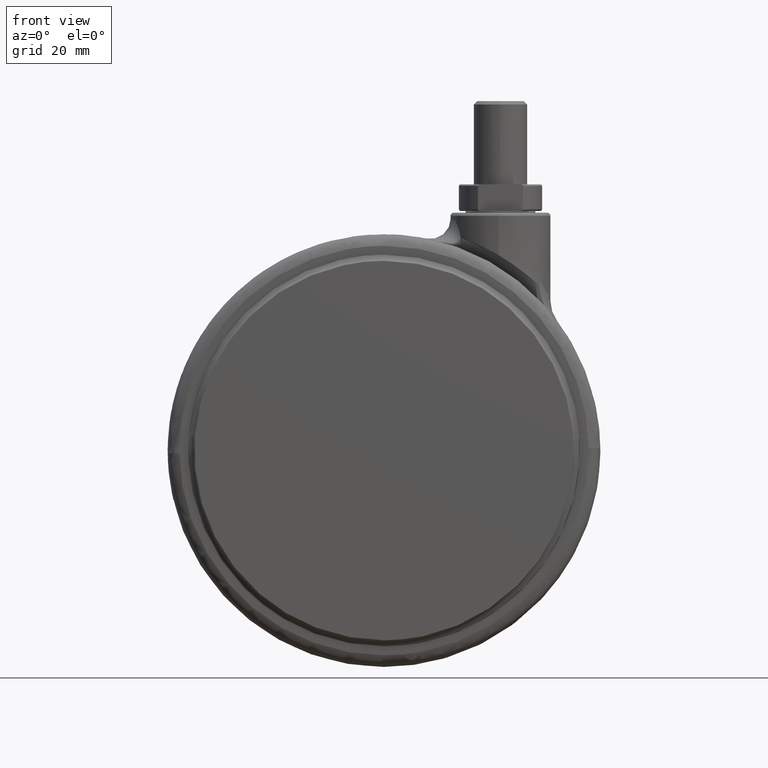
[diagram: clean part render]
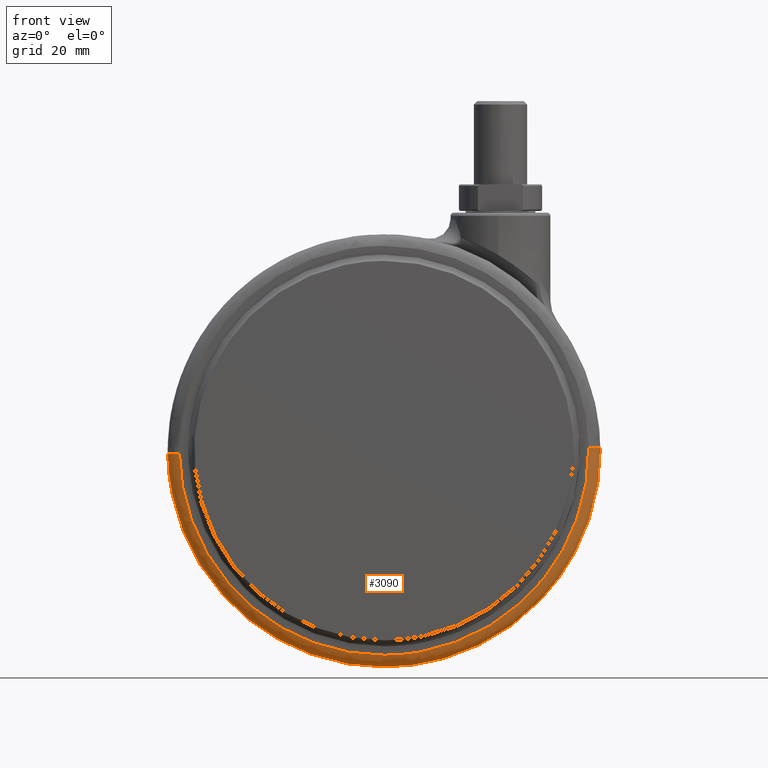
[diagram: same view with one face highlighted and labeled with its STEP entity id]
A machine part, front view. The second image highlights one B-rep face of the part: STEP entity #3090.
In plain terms, the highlighted face is a freeform B-spline surface patch.
Its self-contained STEP definition (entity closure, byte-faithful):
#2750=CARTESIAN_POINT('',(29.994867873247919,-19.500000000344311,-70.683207407572880));
#2751=VERTEX_POINT('',#2750);
#2765=CARTESIAN_POINT('',(12.149334334185131,-19.500000000176971,-116.243047189962700));
#2766=VERTEX_POINT('',#2765);
#2767=CARTESIAN_POINT('',(29.994867873247916,-19.500000000344311,-70.683207407572880));
#2768=CARTESIAN_POINT('',(29.999999999999989,-19.500000000343245,-71.091587580522571));
#2769=CARTESIAN_POINT('',(29.999999999999989,-19.500000000342158,-71.500000000000014));
#2770=CARTESIAN_POINT('',(29.999999999999989,-19.500000000273481,-97.432370304413638));
#2771=CARTESIAN_POINT('',(12.149334334185109,-19.500000000176968,-116.243047189962710));
#2779=(BOUNDED_CURVE()B_SPLINE_CURVE(2,(#2767,#2768,#2769,#2770,#2771),.UNSPECIFIED.,.F.,.U.)B_SPLINE_CURVE_WITH_KNOTS((3,2,3),(0.247784295921703,0.250000000000000,0.371049525922478),.UNSPECIFIED.)CURVE()GEOMETRIC_REPRESENTATION_ITEM()RATIONAL_B_SPLINE_CURVE((0.994854295643955,0.997404141202278,1.0,0.858181658866892,0.853699661423984))REPRESENTATION_ITEM(''));
#2780=EDGE_CURVE('',#2751,#2766,#2779,.T.);
#2816=CARTESIAN_POINT('',(-99.994867873247927,-19.500000000344311,-72.316792592427120));
#2817=VERTEX_POINT('',#2816);
#2838=CARTESIAN_POINT('',(-35.0,-19.500000000000000,-136.500000000000000));
#2839=VERTEX_POINT('',#2838);
#2840=CARTESIAN_POINT('',(12.149334334185109,-19.500000000176968,-116.243047189962710));
#2841=CARTESIAN_POINT('',(-7.073795924245713,-19.500000000073044,-136.500000000000030));
#2842=CARTESIAN_POINT('',(-35.0,-19.500000000000000,-136.500000000000000));
#2850=(BOUNDED_CURVE()B_SPLINE_CURVE(2,(#2840,#2841,#2842),.UNSPECIFIED.,.F.,.U.)B_SPLINE_CURVE_WITH_KNOTS((3,3),(0.371049525922478,0.500000000000000),.UNSPECIFIED.)CURVE()GEOMETRIC_REPRESENTATION_ITEM()RATIONAL_B_SPLINE_CURVE((0.853699661423984,0.848925122319655,1.0))REPRESENTATION_ITEM(''));
#2851=EDGE_CURVE('',#2766,#2839,#2850,.T.);
#2853=CARTESIAN_POINT('',(-35.0,-19.500000000000000,-136.500000000000000));
#2854=CARTESIAN_POINT('',(-99.188275443966333,-19.500000000172157,-136.500000000000000));
#2855=CARTESIAN_POINT('',(-99.994867873247927,-19.500000000344311,-72.316792592427120));
#2863=(BOUNDED_CURVE()B_SPLINE_CURVE(2,(#2853,#2854,#2855),.UNSPECIFIED.,.F.,.U.)B_SPLINE_CURVE_WITH_KNOTS((3,3),(0.500000000000000,0.747784295921703),.UNSPECIFIED.)CURVE()GEOMETRIC_REPRESENTATION_ITEM()RATIONAL_B_SPLINE_CURVE((1.0,0.709702639984269,0.994854295643955))REPRESENTATION_ITEM(''));
#2864=EDGE_CURVE('',#2839,#2817,#2863,.T.);
#2966=CARTESIAN_POINT('',(-96.495144222312859,-23.0,-72.272811452916287));
#2967=VERTEX_POINT('',#2966);
#2968=CARTESIAN_POINT('',(-96.495144222312859,-23.000000000000004,-72.272811452916287));
#2969=CARTESIAN_POINT('',(-99.994867872903427,-22.999999996220982,-72.316792592439498));
#2970=CARTESIAN_POINT('',(-99.994867873247927,-19.500000000344315,-72.316792592427106));
#2978=(BOUNDED_CURVE()B_SPLINE_CURVE(2,(#2968,#2969,#2970),.UNSPECIFIED.,.F.,.U.)B_SPLINE_CURVE_WITH_KNOTS((3,3),(-1.734750790536472,-0.265249208443819),.UNSPECIFIED.)CURVE()GEOMETRIC_REPRESENTATION_ITEM()RATIONAL_B_SPLINE_CURVE((0.889029723178837,0.628638946434219,0.889029723540216))REPRESENTATION_ITEM(''));
#2979=EDGE_CURVE('',#2967,#2817,#2978,.T.);
#2998=CARTESIAN_POINT('',(26.495144222312859,-23.0,-70.727188547083699));
#2999=VERTEX_POINT('',#2998);
#3013=CARTESIAN_POINT('',(26.495144222312859,-23.0,-70.727188547083699));
#3014=CARTESIAN_POINT('',(29.994867872903416,-22.999999996220968,-70.683207407560488));
#3015=CARTESIAN_POINT('',(29.994867873247916,-19.500000000344318,-70.683207407572880));
#3023=(BOUNDED_CURVE()B_SPLINE_CURVE(2,(#3013,#3014,#3015),.UNSPECIFIED.,.F.,.U.)B_SPLINE_CURVE_WITH_KNOTS((3,3),(-1.734750790536469,-0.265249208443821),.UNSPECIFIED.)CURVE()GEOMETRIC_REPRESENTATION_ITEM()RATIONAL_B_SPLINE_CURVE((0.889029723178836,0.628638946434220,0.889029723540215))REPRESENTATION_ITEM(''));
#3024=EDGE_CURVE('',#2999,#2751,#3023,.T.);
#3030=CARTESIAN_POINT('',(26.251783593826129,-22.991527782076986,-70.730246867962137));
#3031=CARTESIAN_POINT('',(27.021536725863992,-22.991527782076982,-131.982030461788300));
#3032=CARTESIAN_POINT('',(-34.230246867962137,-22.991527782076986,-132.751783593826100));
#3033=CARTESIAN_POINT('',(-95.482030461788256,-22.991527782076982,-133.521536725864000));
#3034=CARTESIAN_POINT('',(-96.251783593826133,-22.991527782076986,-72.269753132037877));
#3035=CARTESIAN_POINT('',(30.266226502939062,-23.271379951776357,-70.679797234965861));
#3036=CARTESIAN_POINT('',(31.086429267973205,-23.271379951776350,-135.946023737904910));
#3037=CARTESIAN_POINT('',(-34.179797234965854,-23.271379951776357,-136.766226502939080));
#3038=CARTESIAN_POINT('',(-99.446023737904895,-23.271379951776350,-137.586429267973220));
#3039=CARTESIAN_POINT('',(-100.266226502939090,-23.271379951776357,-72.320202765034168));
#3040=CARTESIAN_POINT('',(29.986396317483923,-19.256620061886441,-70.683313869895557));
#3041=CARTESIAN_POINT('',(30.803082447588373,-19.256620061886444,-135.669710187379450));
#3042=CARTESIAN_POINT('',(-34.183313869895528,-19.256620061886441,-136.486396317483950));
#3043=CARTESIAN_POINT('',(-99.169710187379437,-19.256620061886444,-137.303082447588390));
#3044=CARTESIAN_POINT('',(-99.986396317483909,-19.256620061886441,-72.316686130104458));
#3052=(BOUNDED_SURFACE()B_SPLINE_SURFACE(2,2,((#3030,#3035,#3040),(#3031,#3036,#3041),(#3032,#3037,#3042),(#3033,#3038,#3043),(#3034,#3039,#3044)),.UNSPECIFIED.,.F.,.F.,.U.)B_SPLINE_SURFACE_WITH_KNOTS((3,2,3),(3,3),(0.0,107.681488975515610,215.362977951031100),(0.0,6.378308709147053),.UNSPECIFIED.)GEOMETRIC_REPRESENTATION_ITEM()RATIONAL_B_SPLINE_SURFACE(((0.916342095240933,0.601326568744382,0.916342106857795),(0.647951709431553,0.425202094466791,0.647951717645915),(0.916342095240933,0.601326568744382,0.916342106857795),(0.647951709431553,0.425202094466791,0.647951717645915),(0.916342095240933,0.601326568744382,0.916342106857795)))REPRESENTATION_ITEM('')SURFACE());
#3053=ORIENTED_EDGE('',*,*,#2864,.F.);
#3054=ORIENTED_EDGE('',*,*,#2851,.F.);
#3055=ORIENTED_EDGE('',*,*,#2780,.F.);
#3056=ORIENTED_EDGE('',*,*,#3024,.F.);
#3057=CARTESIAN_POINT('',(-35.0,-23.0,-133.0));
#3058=VERTEX_POINT('',#3057);
#3059=CARTESIAN_POINT('',(26.495144222312859,-22.999999999999996,-70.727188547083699));
#3060=CARTESIAN_POINT('',(26.500000003766985,-23.0,-71.113579018430130));
#3061=CARTESIAN_POINT('',(26.500000003755108,-23.0,-71.499999999952820));
#3062=CARTESIAN_POINT('',(26.500000001865775,-22.999999999999993,-132.999999999976580));
#3063=CARTESIAN_POINT('',(-35.0,-23.0,-133.0));
#3071=(BOUNDED_CURVE()B_SPLINE_CURVE(2,(#3059,#3060,#3061,#3062,#3063),.UNSPECIFIED.,.F.,.U.)B_SPLINE_CURVE_WITH_KNOTS((3,2,3),(0.247784295921606,0.250000000000000,0.500000000000000),.UNSPECIFIED.)CURVE()GEOMETRIC_REPRESENTATION_ITEM()RATIONAL_B_SPLINE_CURVE((0.994854295643732,0.997404141202165,1.0,0.707106781186548,1.0))REPRESENTATION_ITEM(''));
#3072=EDGE_CURVE('',#2999,#3058,#3071,.T.);
#3073=ORIENTED_EDGE('',*,*,#3072,.T.);
#3074=CARTESIAN_POINT('',(-35.0,-23.0,-133.0));
#3075=CARTESIAN_POINT('',(-95.731983691147107,-22.999999999999993,-133.000000000023760));
#3076=CARTESIAN_POINT('',(-96.495144222312859,-22.999999999999996,-72.272811452916287));
#3084=(BOUNDED_CURVE()B_SPLINE_CURVE(2,(#3074,#3075,#3076),.UNSPECIFIED.,.F.,.U.)B_SPLINE_CURVE_WITH_KNOTS((3,3),(0.500000000000000,0.747784295921606),.UNSPECIFIED.)CURVE()GEOMETRIC_REPRESENTATION_ITEM()RATIONAL_B_SPLINE_CURVE((1.0,0.709702639984383,0.994854295643732))REPRESENTATION_ITEM(''));
#3085=EDGE_CURVE('',#3058,#2967,#3084,.T.);
#3086=ORIENTED_EDGE('',*,*,#3085,.T.);
#3087=ORIENTED_EDGE('',*,*,#2979,.T.);
#3088=EDGE_LOOP('',(#3053,#3054,#3055,#3056,#3073,#3086,#3087));
#3089=FACE_OUTER_BOUND('',#3088,.T.);
#3090=ADVANCED_FACE('',(#3089),#3052,.T.);